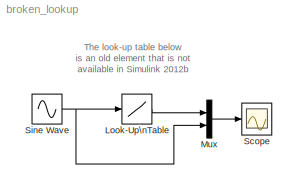
MODEL broken_lookup
KIND model
BLOCK [Lookup] Look-Up\nTable
  InputValues = [0:3]
  SID = 1
  Table = [0 4 10 20]
BLOCK [Mux] Mux
  DisplayOption = bar
  Inputs = 2
  Ports = [2, 1]
  SID = 4
BLOCK [Scope] Scope
  DataFormat = StructureWithTime
  Floating = off
  LimitDataPoints = off
  NumInputPorts = 1
  Ports = [1]
  SID = 3
  SampleTime = 0
  ShowLegends = off
  TimeRange = 10
  YMax = 4
  YMin = -4
BLOCK [Sin] Sine Wave
  Ports = [0, 1]
  SID = 2
  SampleTime = 0
ANNOTATION (root): The look-up table below\nis an old element that is not\navailable in Simulink 2012b
LINE Look-Up\nTable:1 -> Mux:1
LINE Mux:1 -> Scope:1
NET Sine Wave:1 -> Look-Up\nTable:1, Mux:2
note: NET lines group one-source signal fan-out (src -> all destinations, sorted); 1:1 wires keep LINE
